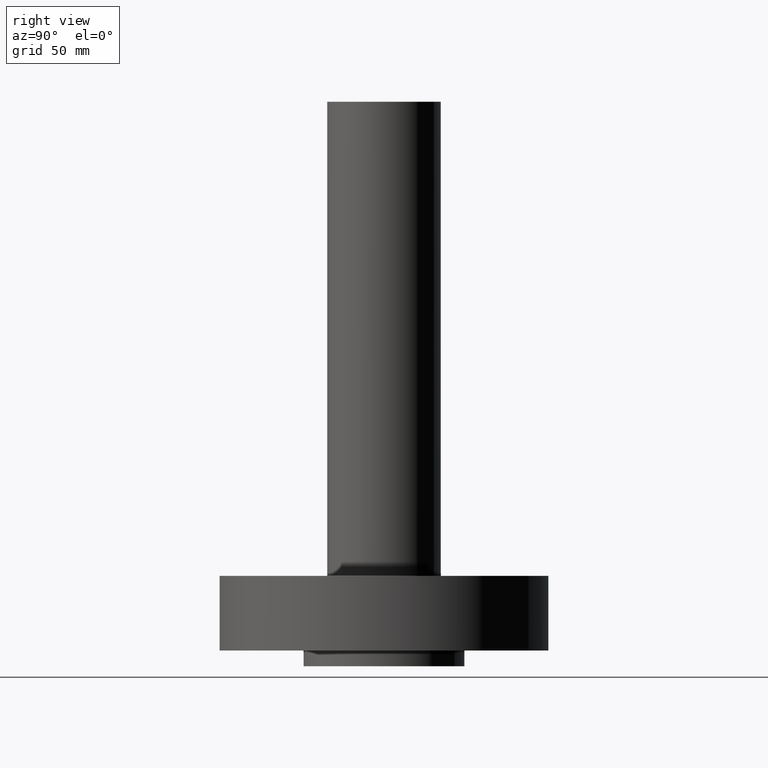
[diagram: clean part render]
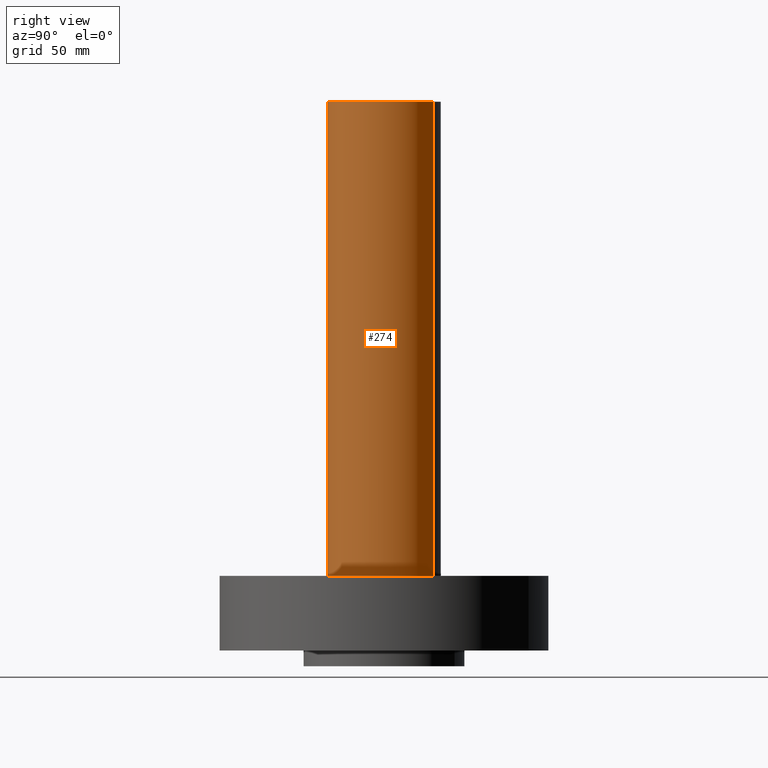
[diagram: same view with one face highlighted and labeled with its STEP entity id]
A machine part, right view. The second image highlights one B-rep face of the part: STEP entity #274.
In plain terms, the highlighted cylindrical surface (partial cylindrical patch) has radius 22.987 mm, axis along (0, 0, -1).
Its self-contained STEP definition (entity closure, byte-faithful):
#238=AXIS2_PLACEMENT_3D('Cylinder Axis2P3D',#235,#236,#237) ;
#242=AXIS2_PLACEMENT_3D('Circle Axis2P3D',#240,#241,$) ;
#258=AXIS2_PLACEMENT_3D('Circle Axis2P3D',#256,#257,$) ;
#235=CARTESIAN_POINT('Axis2P3D Location',(0.,0.,4.25000000002)) ;
#240=CARTESIAN_POINT('Axis2P3D Location',(0.,0.,1.19)) ;
#244=CARTESIAN_POINT('Vertex',(0.433880112439,0.794212218514,1.19)) ;
#246=CARTESIAN_POINT('Vertex',(-0.433880112439,-0.794212218514,1.19)) ;
#249=CARTESIAN_POINT('Line Origine',(0.433880112439,0.794212218514,4.97000000002)) ;
#253=CARTESIAN_POINT('Vertex',(0.433880112439,0.794212218514,8.75000000004)) ;
#256=CARTESIAN_POINT('Axis2P3D Location',(0.,0.,8.75000000004)) ;
#260=CARTESIAN_POINT('Vertex',(-0.433880112439,-0.794212218514,8.75000000004)) ;
#263=CARTESIAN_POINT('Line Origine',(-0.433880112439,-0.794212218514,4.97000000002)) ;
#236=DIRECTION('Axis2P3D Direction',(0.,0.,-0.0393700787402)) ;
#237=DIRECTION('Axis2P3D XDirection',(-0.0188750212049,-0.0345504945626,0.)) ;
#241=DIRECTION('Axis2P3D Direction',(0.,0.,-0.0393700787402)) ;
#250=DIRECTION('Vector Direction',(0.,0.,-0.0393700787402)) ;
#257=DIRECTION('Axis2P3D Direction',(0.,0.,-0.0393700787402)) ;
#264=DIRECTION('Vector Direction',(0.,0.,-0.0393700787402)) ;
#251=VECTOR('Line Direction',#250,0.0393700787402) ;
#265=VECTOR('Line Direction',#264,0.0393700787402) ;
#269=ORIENTED_EDGE('',*,*,#248,.F.) ;
#270=ORIENTED_EDGE('',*,*,#255,.T.) ;
#271=ORIENTED_EDGE('',*,*,#262,.T.) ;
#272=ORIENTED_EDGE('',*,*,#267,.F.) ;
#274=ADVANCED_FACE('PartBody',(#273),#239,.T.) ;
#243=CIRCLE('generated circle',#242,0.905000000004) ;
#259=CIRCLE('generated circle',#258,0.905000000004) ;
#239=CYLINDRICAL_SURFACE('generated cylinder',#238,0.905000000004) ;
#248=EDGE_CURVE('',#245,#247,#243,.T.) ;
#255=EDGE_CURVE('',#245,#254,#252,.F.) ;
#262=EDGE_CURVE('',#254,#261,#259,.T.) ;
#267=EDGE_CURVE('',#247,#261,#266,.F.) ;
#268=EDGE_LOOP('',(#269,#270,#271,#272)) ;
#273=FACE_OUTER_BOUND('',#268,.T.) ;
#252=LINE('Line',#249,#251) ;
#266=LINE('Line',#263,#265) ;
#245=VERTEX_POINT('',#244) ;
#247=VERTEX_POINT('',#246) ;
#254=VERTEX_POINT('',#253) ;
#261=VERTEX_POINT('',#260) ;